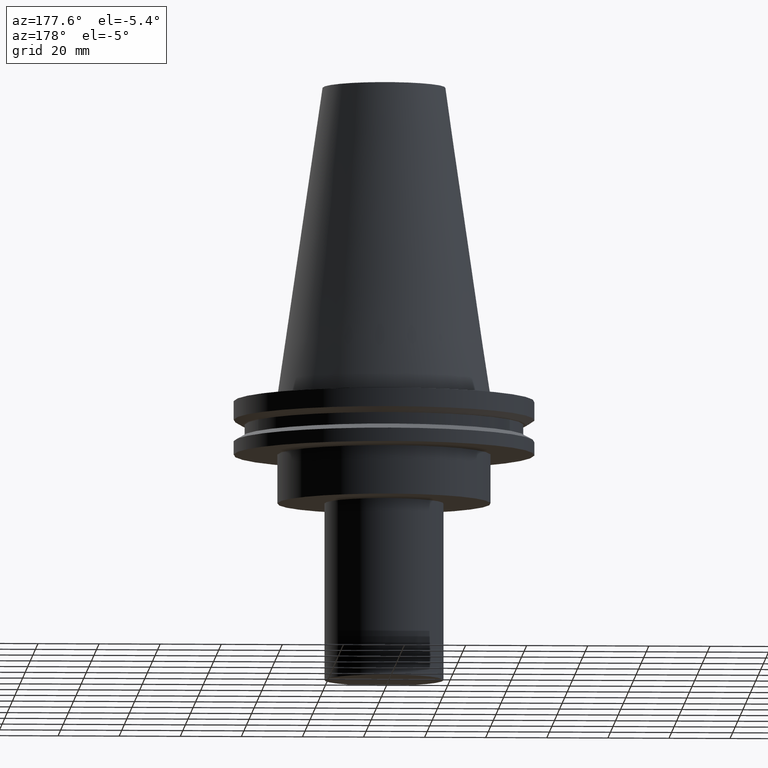
[diagram: clean part render]
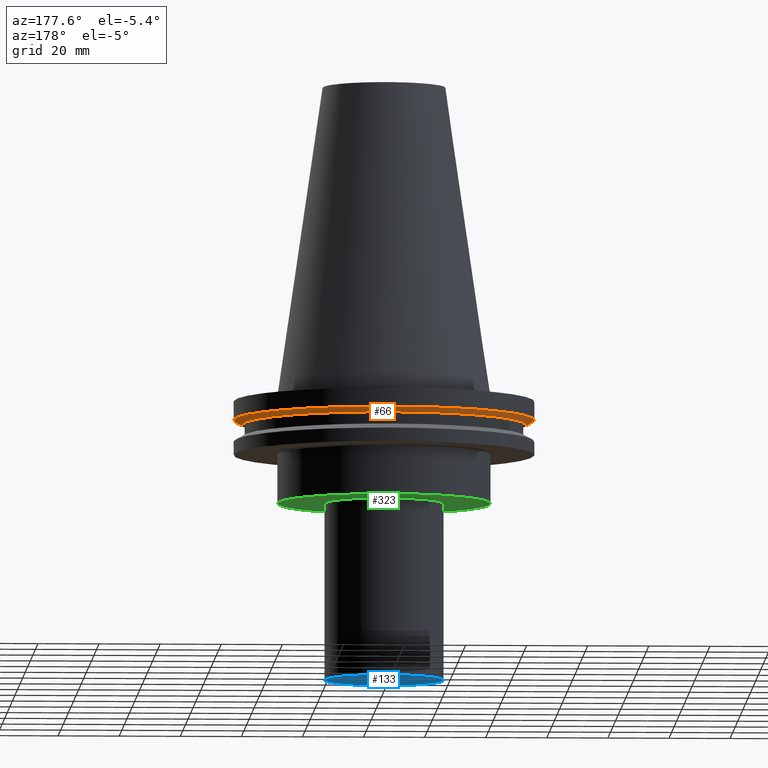
[diagram: same view with three faces highlighted in distinct colors, each labeled with its STEP entity id]
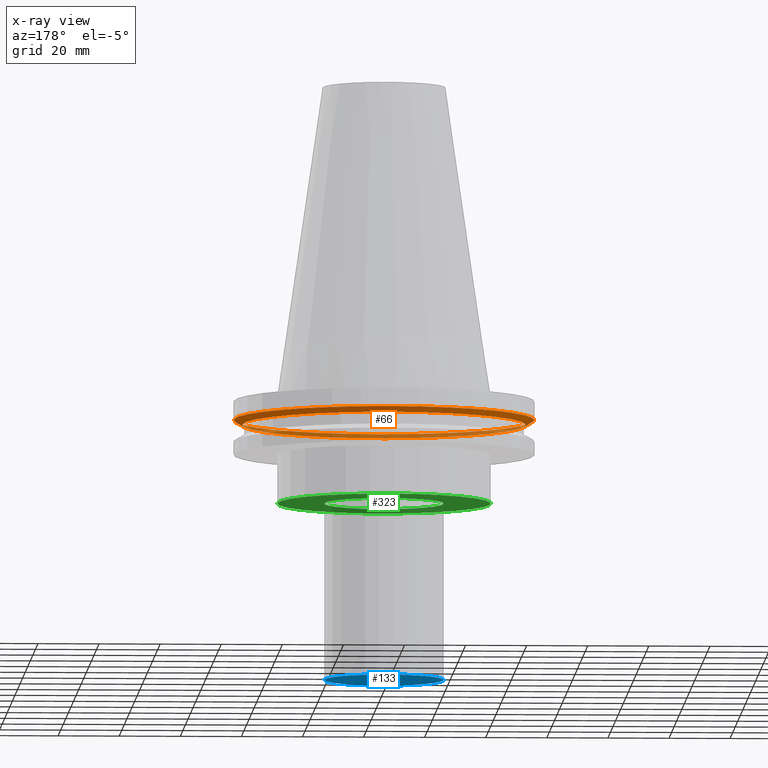
[diagram: x-ray of the same camera — body ghosted, the three highlighted faces saturated]
A machine part, auxiliary view with three faces highlighted in distinct colors.
The next image is the same camera in x-ray (body ghosted, the three faces saturated) — at least one of them is partly hidden behind the body in this view.
Their STEP definitions:

[orange] entity #66 — the highlighted conical surface has half-angle 60 deg.
#4 = AXIS2_PLACEMENT_3D ( 'NONE', #281, #8, #366 ) ;
#8 = DIRECTION ( 'NONE',  ( -0.000000000000000000, -0.000000000000000000, 1.000000000000000000 ) ) ;
#38 = DIRECTION ( 'NONE',  ( 1.000000000000000000, 0.000000000000000000, 0.000000000000000000 ) ) ;
#53 = EDGE_LOOP ( 'NONE', ( #393 ) ) ;
#61 = EDGE_CURVE ( 'NONE', #142, #142, #193, .T. ) ;
#64 = FACE_BOUND ( 'NONE', #275, .T. ) ;
#66 = ADVANCED_FACE ( 'NONE', ( #337, #64 ), #153, .T. ) ;
#71 = EDGE_CURVE ( 'NONE', #300, #300, #230, .T. ) ;
#79 = CARTESIAN_POINT ( 'NONE',  ( 49.21500000000000341, 0.000000000000000000, -7.602389855251287187 ) ) ;
#89 = CARTESIAN_POINT ( 'NONE',  ( 0.000000000000000000, 0.000000000000000000, -9.204999999999991189 ) ) ;
#96 = CARTESIAN_POINT ( 'NONE',  ( 0.000000000000000000, 0.000000000000000000, -7.602389855251287187 ) ) ;
#142 = VERTEX_POINT ( 'NONE', #79 ) ;
#153 = CONICAL_SURFACE ( 'NONE', #4, 46.43919780457007818, 1.047197551196575205 ) ;
#180 = DIRECTION ( 'NONE',  ( 1.000000000000000000, 0.000000000000000000, 0.000000000000000000 ) ) ;
#184 = AXIS2_PLACEMENT_3D ( 'NONE', #89, #215, #180 ) ;
#193 = CIRCLE ( 'NONE', #267, 49.21500000000000341 ) ;
#205 = CARTESIAN_POINT ( 'NONE',  ( 46.43919780457007818, 0.000000000000000000, -9.204999999999991189 ) ) ;
#215 = DIRECTION ( 'NONE',  ( -0.000000000000000000, -0.000000000000000000, 1.000000000000000000 ) ) ;
#221 = DIRECTION ( 'NONE',  ( -0.000000000000000000, -0.000000000000000000, 1.000000000000000000 ) ) ;
#230 = CIRCLE ( 'NONE', #184, 46.43919780457007818 ) ;
#267 = AXIS2_PLACEMENT_3D ( 'NONE', #96, #221, #38 ) ;
#273 = ORIENTED_EDGE ( 'NONE', *, *, #71, .T. ) ;
#275 = EDGE_LOOP ( 'NONE', ( #273 ) ) ;
#281 = CARTESIAN_POINT ( 'NONE',  ( 0.000000000000000000, 0.000000000000000000, -9.204999999999991189 ) ) ;
#300 = VERTEX_POINT ( 'NONE', #205 ) ;
#337 = FACE_OUTER_BOUND ( 'NONE', #53, .T. ) ;
#366 = DIRECTION ( 'NONE',  ( 1.000000000000000000, 0.000000000000000000, 0.000000000000000000 ) ) ;
#393 = ORIENTED_EDGE ( 'NONE', *, *, #61, .F. ) ;

[blue] entity #133 — the highlighted planar face has unit normal (0, -0, 1).
#30 = ORIENTED_EDGE ( 'NONE', *, *, #354, .F. ) ;
#44 = FACE_OUTER_BOUND ( 'NONE', #334, .T. ) ;
#98 = PLANE ( 'NONE',  #242 ) ;
#105 = DIRECTION ( 'NONE',  ( 1.000000000000000000, 0.000000000000000000, 0.000000000000000000 ) ) ;
#123 = VERTEX_POINT ( 'NONE', #338 ) ;
#133 = ADVANCED_FACE ( 'NONE', ( #44 ), #98, .F. ) ;
#170 = CARTESIAN_POINT ( 'NONE',  ( 0.000000000000000000, 0.000000000000000000, -92.99999999999997158 ) ) ;
#179 = CIRCLE ( 'NONE', #353, 19.50000000000000000 ) ;
#242 = AXIS2_PLACEMENT_3D ( 'NONE', #258, #383, #105 ) ;
#258 = CARTESIAN_POINT ( 'NONE',  ( 0.000000000000000000, 19.50000000000000000, -92.99999999999997158 ) ) ;
#264 = DIRECTION ( 'NONE',  ( -0.000000000000000000, -0.000000000000000000, 1.000000000000000000 ) ) ;
#334 = EDGE_LOOP ( 'NONE', ( #30 ) ) ;
#338 = CARTESIAN_POINT ( 'NONE',  ( 19.50000000000000000, 0.000000000000000000, -92.99999999999997158 ) ) ;
#353 = AXIS2_PLACEMENT_3D ( 'NONE', #170, #264, #391 ) ;
#354 = EDGE_CURVE ( 'NONE', #123, #123, #179, .T. ) ;
#383 = DIRECTION ( 'NONE',  ( 0.000000000000000000, -0.000000000000000000, 1.000000000000000000 ) ) ;
#391 = DIRECTION ( 'NONE',  ( 1.000000000000000000, 0.000000000000000000, 0.000000000000000000 ) ) ;

[green] entity #323 — the highlighted planar face has unit normal (0, -0, 1).
#39 = DIRECTION ( 'NONE',  ( -0.000000000000000000, -0.000000000000000000, 1.000000000000000000 ) ) ;
#42 = DIRECTION ( 'NONE',  ( 1.000000000000000000, 0.000000000000000000, 0.000000000000000000 ) ) ;
#50 = EDGE_LOOP ( 'NONE', ( #362 ) ) ;
#54 = FACE_OUTER_BOUND ( 'NONE', #50, .T. ) ;
#56 = CARTESIAN_POINT ( 'NONE',  ( 19.50000000000000000, 0.000000000000000000, -35.00000000000000000 ) ) ;
#63 = CIRCLE ( 'NONE', #83, 19.50000000000000000 ) ;
#75 = DIRECTION ( 'NONE',  ( 1.000000000000000000, 0.000000000000000000, 0.000000000000000000 ) ) ;
#83 = AXIS2_PLACEMENT_3D ( 'NONE', #99, #315, #42 ) ;
#99 = CARTESIAN_POINT ( 'NONE',  ( 0.000000000000000000, 0.000000000000000000, -35.00000000000000000 ) ) ;
#116 = VERTEX_POINT ( 'NONE', #56 ) ;
#119 = CIRCLE ( 'NONE', #128, 34.92499999999999716 ) ;
#128 = AXIS2_PLACEMENT_3D ( 'NONE', #377, #39, #199 ) ;
#150 = EDGE_LOOP ( 'NONE', ( #308 ) ) ;
#177 = VERTEX_POINT ( 'NONE', #245 ) ;
#199 = DIRECTION ( 'NONE',  ( 1.000000000000000000, 0.000000000000000000, 0.000000000000000000 ) ) ;
#211 = FACE_BOUND ( 'NONE', #150, .T. ) ;
#235 = CARTESIAN_POINT ( 'NONE',  ( 0.000000000000000000, 34.92499999999999716, -35.00000000000000000 ) ) ;
#243 = AXIS2_PLACEMENT_3D ( 'NONE', #235, #352, #75 ) ;
#245 = CARTESIAN_POINT ( 'NONE',  ( 34.92499999999999716, 0.000000000000000000, -35.00000000000000000 ) ) ;
#269 = PLANE ( 'NONE',  #243 ) ;
#284 = EDGE_CURVE ( 'NONE', #177, #177, #119, .T. ) ;
#296 = EDGE_CURVE ( 'NONE', #116, #116, #63, .T. ) ;
#308 = ORIENTED_EDGE ( 'NONE', *, *, #296, .T. ) ;
#315 = DIRECTION ( 'NONE',  ( -0.000000000000000000, -0.000000000000000000, 1.000000000000000000 ) ) ;
#323 = ADVANCED_FACE ( 'NONE', ( #211, #54 ), #269, .F. ) ;
#352 = DIRECTION ( 'NONE',  ( 0.000000000000000000, -0.000000000000000000, 1.000000000000000000 ) ) ;
#362 = ORIENTED_EDGE ( 'NONE', *, *, #284, .F. ) ;
#377 = CARTESIAN_POINT ( 'NONE',  ( 0.000000000000000000, 0.000000000000000000, -35.00000000000000000 ) ) ;